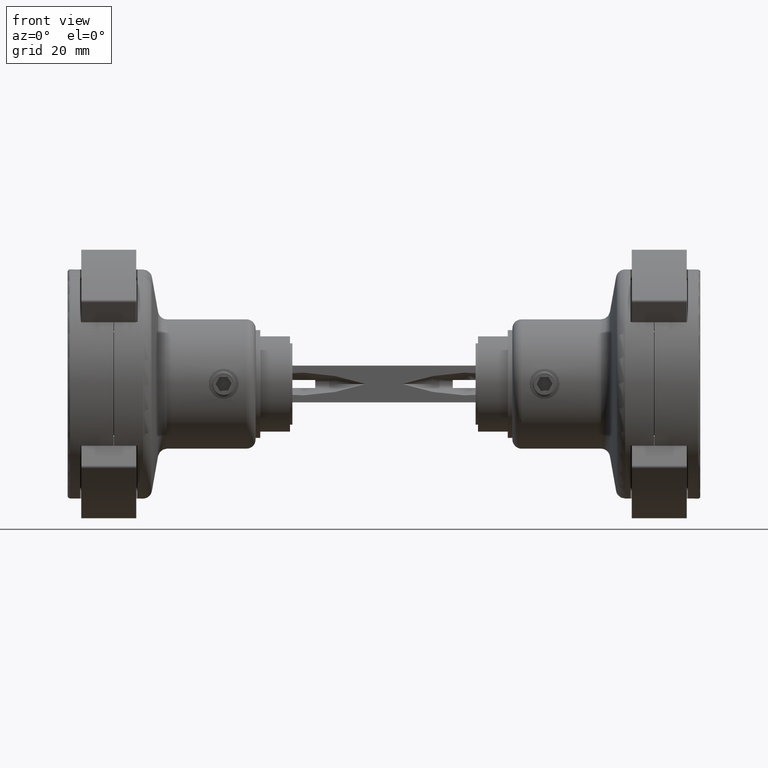
[diagram: clean part render]
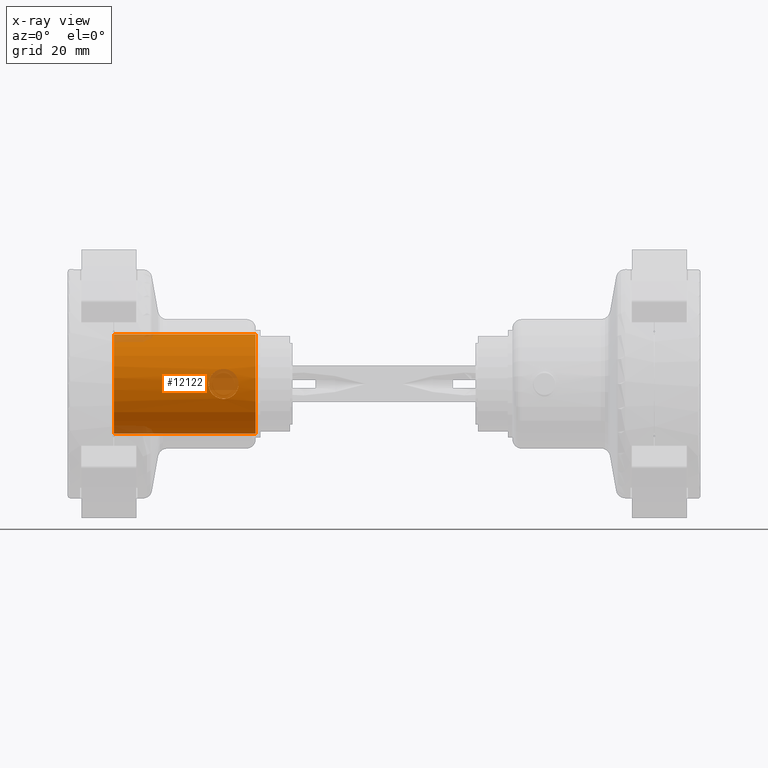
[diagram: x-ray — body ghosted, one internal face saturated and labeled with its STEP entity id]
A machine part, front view, then the same camera in x-ray: the body is ghosted and one INTERNAL B-rep face — a face not visible from any outside direction — is saturated and labeled: STEP entity #12122.
In plain terms, the highlighted cylindrical surface (bore or boss wall) has radius 10.8 mm, axis along (1, -0, -0).
Its self-contained STEP definition (entity closure, byte-faithful):
#699 = CARTESIAN_POINT ( 'NONE',  ( 2.817479046287953093, -10.42671985827245784, -22.36637488988639078 ) ) ;
#899 = CARTESIAN_POINT ( 'NONE',  ( 0.4285990900517155922, -10.79352379855297706, -27.22866112559641039 ) ) ;
#1001 = CARTESIAN_POINT ( 'NONE',  ( 0.8466914416694408807, -10.76879597599130456, -27.14500611232068294 ) ) ;
#1039 = CARTESIAN_POINT ( 'NONE',  ( -0.4282599579717589200, -10.79352752915699654, -27.22867173938187335 ) ) ;
#1050 = ORIENTED_EDGE ( 'NONE', *, *, #3815, .F. ) ;
#1096 = CARTESIAN_POINT ( 'NONE',  ( -1.052459570206780937, -10.75041730152214292, -27.08222981470462543 ) ) ;
#1150 = CARTESIAN_POINT ( 'NONE',  ( -3.228739646735507840, -10.30617047523177554, -23.57205511922632013 ) ) ;
#1196 = CARTESIAN_POINT ( 'NONE',  ( -3.004621377921063313E-14, -1.290634266126744794E-14, -31.00000000000000000 ) ) ;
#1239 = CYLINDRICAL_SURFACE ( 'NONE', #15287, 10.80000000000000071 ) ;
#1270 = ORIENTED_EDGE ( 'NONE', *, *, #2643, .F. ) ;
#1317 = CARTESIAN_POINT ( 'NONE',  ( -2.583685343892689001, -10.48709957687630201, -22.01717715406005738 ) ) ;
#1445 = CARTESIAN_POINT ( 'NONE',  ( 1.984228878807605900, -10.61765766629651608, -21.41734030933938016 ) ) ;
#1844 = CARTESIAN_POINT ( 'NONE',  ( 3.229142426394334908, -10.30604402250981977, -24.42513291839642875 ) ) ;
#1903 = CARTESIAN_POINT ( 'NONE',  ( 3.082871783519847142, -10.35100309911909022, -22.94908852857621184 ) ) ;
#2061 = CARTESIAN_POINT ( 'NONE',  ( 3.249938945303724402, -10.29941245197411703, -23.78483499365115605 ) ) ;
#2350 = CARTESIAN_POINT ( 'NONE',  ( -2.919398594600696395, -10.39828855474007518, -22.55592352798681333 ) ) ;
#2404 = CARTESIAN_POINT ( 'NONE',  ( -2.448022709363525173, -10.52001607874064959, -21.85182456518504779 ) ) ;
#2516 = CARTESIAN_POINT ( 'NONE',  ( -2.818366621927593130, -10.42648056997035333, -22.36787684930591880 ) ) ;
#2599 = DIRECTION ( 'NONE',  ( -1.000000000000000000, 1.099986463751427374E-17, -9.637352644315594750E-16 ) ) ;
#2633 = CARTESIAN_POINT ( 'NONE',  ( -0.4299096660079446686, -10.79348756435023304, -20.77145634483616021 ) ) ;
#2643 = EDGE_CURVE ( 'NONE', #13875, #13875, #10060, .T. ) ;
#2692 = CARTESIAN_POINT ( 'NONE',  ( 1.050337245373939465, -10.75061437416018606, -20.91709366252034030 ) ) ;
#3247 = CARTESIAN_POINT ( 'NONE',  ( 1.632255294733566897, -10.67743777094386282, -26.81836882621054130 ) ) ;
#3296 = CARTESIAN_POINT ( 'NONE',  ( 2.918005205654168766, -10.39868305177973440, -22.55301728615430434 ) ) ;
#3345 = CARTESIAN_POINT ( 'NONE',  ( 0.2160560405135921180, -10.80000000000002913, -27.25000000000001066 ) ) ;
#3685 = CARTESIAN_POINT ( 'NONE',  ( -2.149821421091945073, -10.58496547797583531, -26.44645468345828121 ) ) ;
#3740 = CARTESIAN_POINT ( 'NONE',  ( -2.148109041785892792, -10.58532857435795194, -21.55191903138400988 ) ) ;
#3815 = EDGE_CURVE ( 'NONE', #12916, #12916, #5398, .T. ) ;
#3859 = CARTESIAN_POINT ( 'NONE',  ( 0.4250603348147181659, -10.79370184045430392, -20.77074038797121602 ) ) ;
#3911 = CARTESIAN_POINT ( 'NONE',  ( 2.447139079711652787, -10.52022250755817012, -21.85081828496426226 ) ) ;
#4415 = CARTESIAN_POINT ( 'NONE',  ( 2.838530463257439962, -10.42168078163933131, -25.63860661893608395 ) ) ;
#4513 = CARTESIAN_POINT ( 'NONE',  ( 3.250060791883961464, -10.29937400297414918, -24.21331661261468327 ) ) ;
#4804 = CARTESIAN_POINT ( 'NONE',  ( -3.250142607772065428, -10.29934818577067190, -23.78883244597842150 ) ) ;
#4919 = CARTESIAN_POINT ( 'NONE',  ( -2.581698146901131530, -10.48760619771748281, -25.98567540488446426 ) ) ;
#5003 = DIRECTION ( 'NONE',  ( -9.692327025551828717E-16, -4.163336342344337520E-16, -1.000000000000000000 ) ) ;
#5398 = CIRCLE ( 'NONE', #15797, 10.80000000000000071 ) ;
#5889 = CARTESIAN_POINT ( 'NONE',  ( 1.446257911373355132, -10.70454489755317518, -26.91820716114012058 ) ) ;
#5920 = DIRECTION ( 'NONE',  ( 9.692327025551828717E-16, 4.163336342344337520E-16, 1.000000000000000000 ) ) ;
#5941 = CARTESIAN_POINT ( 'NONE',  ( 1.054229730558243538, -10.75023455954096008, -27.08158963146401277 ) ) ;
#6077 = CARTESIAN_POINT ( 'NONE',  ( -1.984046342786188077, -10.61769708695783621, -26.58282865258311745 ) ) ;
#6114 = EDGE_LOOP ( 'NONE', ( #14556 ) ) ;
#6127 = CARTESIAN_POINT ( 'NONE',  ( -2.919325036446168919, -10.39830244028830997, -25.44386847629080606 ) ) ;
#6161 = AXIS2_PLACEMENT_3D ( 'NONE', #6768, #13991, #7923 ) ;
#6233 = CARTESIAN_POINT ( 'NONE',  ( -3.081808561089029563, -10.35130949691513713, -25.05340915035244720 ) ) ;
#6562 = CARTESIAN_POINT ( 'NONE',  ( 10.79999999999997051, -1.302514119935260380E-14, -30.99999999999998934 ) ) ;
#6768 = CARTESIAN_POINT ( 'NONE',  ( -9.692327025551795930E-17, -4.163336342344032576E-17, -0.09999999999999592548 ) ) ;
#6816 = FACE_BOUND ( 'NONE', #6114, .T. ) ;
#6820 = CARTESIAN_POINT ( 'NONE',  ( 3.228269933115303747, -10.30631780513230211, -23.56883879102166901 ) ) ;
#7128 = CARTESIAN_POINT ( 'NONE',  ( -0.2160560405136463247, -10.80000000000002558, -27.25000000000000000 ) ) ;
#7394 = CARTESIAN_POINT ( 'NONE',  ( -3.145234256357706926, -10.33196065824753518, -23.15418796413370828 ) ) ;
#7457 = CARTESIAN_POINT ( 'NONE',  ( -1.634322112655375303, -10.67711077361732563, -21.18288177982071474 ) ) ;
#7563 = CARTESIAN_POINT ( 'NONE',  ( 0.2115183233590923750, -10.80002701001754595, -20.74991024362655168 ) ) ;
#7923 = DIRECTION ( 'NONE',  ( -1.000000000000000000, 1.099986463751430148E-17, -9.687547189338071077E-16 ) ) ;
#8076 = CARTESIAN_POINT ( 'NONE',  ( 3.082575926855094739, -10.35108192564822005, -25.05127178492934448 ) ) ;
#8127 = CARTESIAN_POINT ( 'NONE',  ( 3.144678237343044636, -10.33213009233934976, -23.15228216205795064 ) ) ;
#8359 = FACE_OUTER_BOUND ( 'NONE', #9137, .T. ) ;
#8474 = CARTESIAN_POINT ( 'NONE',  ( -1.631702407740089011, -10.67752211766809189, -26.81868603989566680 ) ) ;
#8797 = CARTESIAN_POINT ( 'NONE',  ( 0.8470591443230879314, -10.76880525011377365, -20.85495870676844277 ) ) ;
#9137 = EDGE_LOOP ( 'NONE', ( #1050 ) ) ;
#9301 = CARTESIAN_POINT ( 'NONE',  ( 2.597051105187587972, -10.48752733652377422, -25.99884678567318019 ) ) ;
#9363 = CARTESIAN_POINT ( 'NONE',  ( 3.145755623128969169, -10.33180167073501110, -24.84399073916512890 ) ) ;
#9427 = EDGE_CURVE ( 'NONE', #15822, #15822, #11559, .T. ) ;
#9656 = DIRECTION ( 'NONE',  ( 1.000000000000000000, -1.099986463751434462E-17, 9.637352644315594750E-16 ) ) ;
#10019 = CARTESIAN_POINT ( 'NONE',  ( 2.147106259172418596, -10.58553286310180397, -21.55103972438941895 ) ) ;
#10060 = CIRCLE ( 'NONE', #6161, 10.80000000000000071 ) ;
#10595 = CARTESIAN_POINT ( 'NONE',  ( 1.984614720462718473, -10.61759102202035265, -26.58239512837676699 ) ) ;
#10939 = CARTESIAN_POINT ( 'NONE',  ( -1.444021436481523590, -10.70484350536581530, -21.08070366576396637 ) ) ;
#11216 = CARTESIAN_POINT ( 'NONE',  ( -0.2142676204700054710, -10.79997281501407791, -20.75009033780654022 ) ) ;
#11271 = CARTESIAN_POINT ( 'NONE',  ( 1.442253040801105168, -10.70508402195981823, -21.07982432360794434 ) ) ;
#11478 = CARTESIAN_POINT ( 'NONE',  ( -2.629279260654354100E-14, -10.80000000000002736, -27.25000000000000355 ) ) ;
#11559 = B_SPLINE_CURVE_WITH_KNOTS ( 'NONE', 3,
 ( #14505, #7128, #1039, #12121, #1096, #13153, #8474, #6077, #3685, #14870, #4919, #13511, #6127, #6233, #14668, #13567, #14773, #4804, #1150, #7394, #15906, #2350, #2516, #1317, #2404, #3740, #14822, #7457, #10939, #12161, #14931, #2633, #11216, #7563, #3859, #8797, #2692, #11271, #12454, #1445, #10019, #3911, #15391, #699, #3296, #1903, #8127, #6820, #2061, #4513, #1844, #9363, #8076, #4415, #9301, #13012, #10595, #3247, #5889, #5941, #1001, #899, #3345, #14419 ),
 .UNSPECIFIED., .T., .F.,
 ( 4, 2, 2, 2, 2, 2, 2, 2, 2, 2, 2, 2, 2, 2, 2, 2, 2, 2, 2, 2, 2, 2, 2, 2, 2, 2, 2, 2, 2, 2, 2, 4 ),
 ( 0.000000000000000000, 0.0006386986894028117909, 0.001277397378805623582, 0.001916096068208435373, 0.002554794757611246296, 0.003193493447014057220, 0.003832192136416868577, 0.004470890825819679934, 0.005109589515222490858, 0.005748288204625302648, 0.006386986894028113572, 0.007025685583430926230, 0.007664384272833737154, 0.008303082962236548945, 0.008941781651639361603, 0.009580480341042172526, 0.01021917903044498345, 0.01085787771984779437, 0.01149657640925060703, 0.01213527509865341796, 0.01277397378805622888, 0.01341267247745904327, 0.01405137116686185420, 0.01469006985626466512, 0.01532876854566747604, 0.01596746723507028870, 0.01660616592447310136, 0.01788356330327872321, 0.01852226199268153239, 0.01916096068208433811, 0.01979965937148714730, 0.02043835806088995302 ),
 .UNSPECIFIED. ) ;
#11621 = EDGE_LOOP ( 'NONE', ( #1270 ) ) ;
#12121 = CARTESIAN_POINT ( 'NONE',  ( -0.8453517008271610456, -10.76889147573604610, -27.14533118990573968 ) ) ;
#12122 = ADVANCED_FACE ( 'NONE', ( #6816, #13181, #8359 ), #1239, .F. ) ;
#12161 = CARTESIAN_POINT ( 'NONE',  ( -1.052342150011407185, -10.75041619578982655, -20.91778245488551846 ) ) ;
#12454 = CARTESIAN_POINT ( 'NONE',  ( 1.632510385310439904, -10.67739333376891153, -21.18180817489104584 ) ) ;
#12762 = CARTESIAN_POINT ( 'NONE',  ( -10.80000000000000071, 7.716517466171414436E-17, -0.1000000000000063893 ) ) ;
#12916 = VERTEX_POINT ( 'NONE', #6562 ) ;
#13012 = CARTESIAN_POINT ( 'NONE',  ( 2.150329613555339581, -10.58486223681675753, -26.44601170928395462 ) ) ;
#13153 = CARTESIAN_POINT ( 'NONE',  ( -1.445497989126608651, -10.70465687760319540, -26.91862079431447441 ) ) ;
#13181 = FACE_OUTER_BOUND ( 'NONE', #11621, .T. ) ;
#13511 = CARTESIAN_POINT ( 'NONE',  ( -2.819253874540912808, -10.42625803781016636, -25.63091377030242413 ) ) ;
#13567 = CARTESIAN_POINT ( 'NONE',  ( -3.228908613239853675, -10.30611864142708178, -24.42723427214818699 ) ) ;
#13875 = VERTEX_POINT ( 'NONE', #12762 ) ;
#13991 = DIRECTION ( 'NONE',  ( -9.692327025551828717E-16, -4.163336342344337520E-16, -1.000000000000000000 ) ) ;
#14419 = CARTESIAN_POINT ( 'NONE',  ( -2.634611279139775775E-14, -10.80000000000002736, -27.25000000000000355 ) ) ;
#14505 = CARTESIAN_POINT ( 'NONE',  ( -2.634611279139775775E-14, -10.80000000000002736, -27.25000000000000355 ) ) ;
#14556 = ORIENTED_EDGE ( 'NONE', *, *, #9427, .F. ) ;
#14668 = CARTESIAN_POINT ( 'NONE',  ( -3.144907876643885380, -10.33206110760329999, -24.84731009870980145 ) ) ;
#14691 = CARTESIAN_POINT ( 'NONE',  ( 9.694265490956944752E-15, 4.164169009612825647E-15, 10.00200000000000422 ) ) ;
#14773 = CARTESIAN_POINT ( 'NONE',  ( -3.249855925207878027, -10.29943864916841889, -24.21553461930264817 ) ) ;
#14822 = CARTESIAN_POINT ( 'NONE',  ( -1.985394309375810629, -10.61743437353430153, -21.41826157973381939 ) ) ;
#14870 = CARTESIAN_POINT ( 'NONE',  ( -2.447640737978963088, -10.52008940695428763, -26.14847096293776119 ) ) ;
#14931 = CARTESIAN_POINT ( 'NONE',  ( -0.8496287762264043142, -10.76858055016157500, -20.85572784307182204 ) ) ;
#15287 = AXIS2_PLACEMENT_3D ( 'NONE', #14691, #5003, #2599 ) ;
#15391 = CARTESIAN_POINT ( 'NONE',  ( 2.582891283089573164, -10.48729458911614287, -22.01616739708073567 ) ) ;
#15797 = AXIS2_PLACEMENT_3D ( 'NONE', #1196, #5920, #9656 ) ;
#15822 = VERTEX_POINT ( 'NONE', #11478 ) ;
#15906 = CARTESIAN_POINT ( 'NONE',  ( -3.083468709619477277, -10.35082188710600093, -22.95096914822489609 ) ) ;